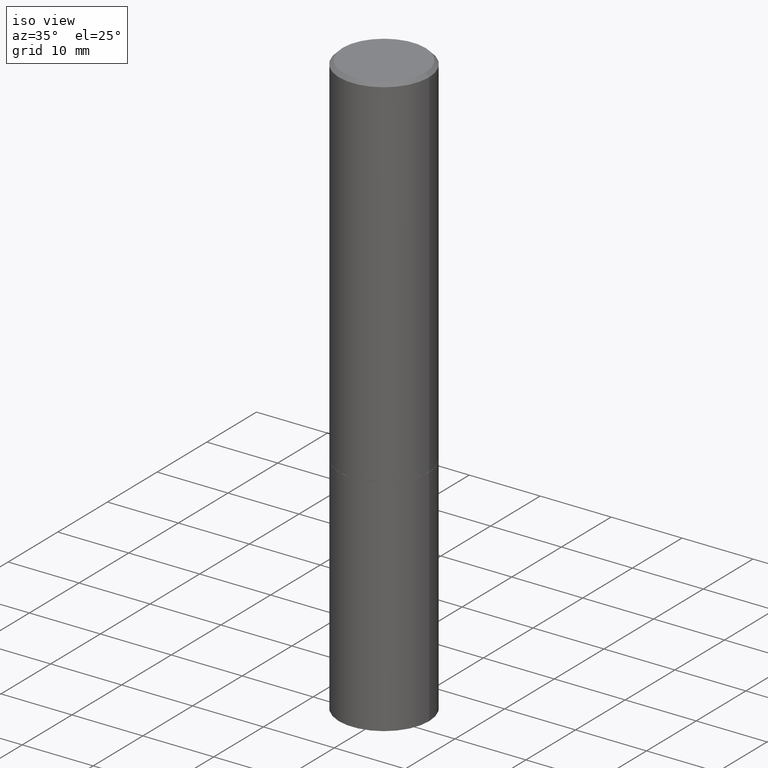
[diagram: clean part render]
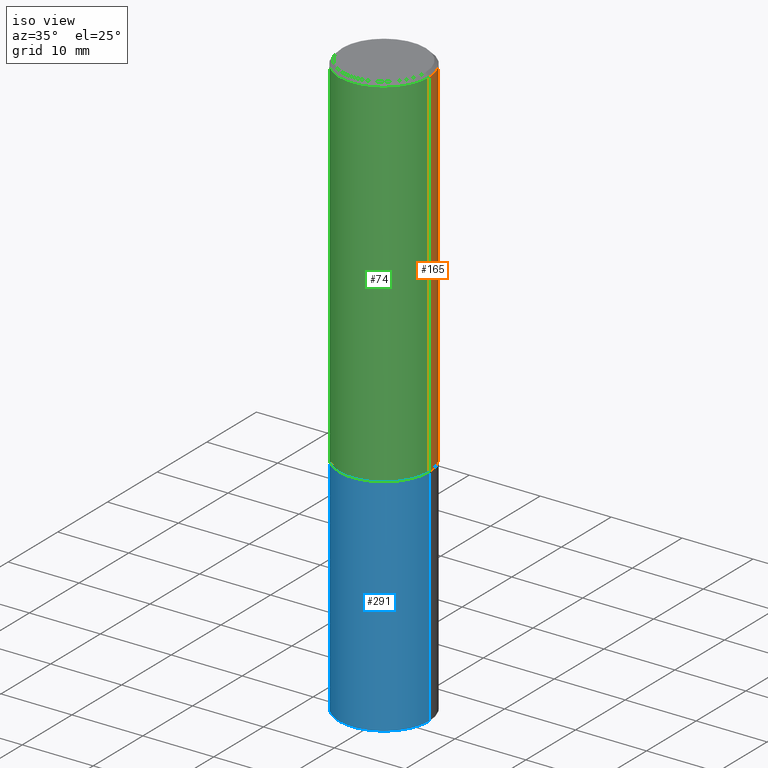
[diagram: same view with three faces highlighted in distinct colors, each labeled with its STEP entity id]
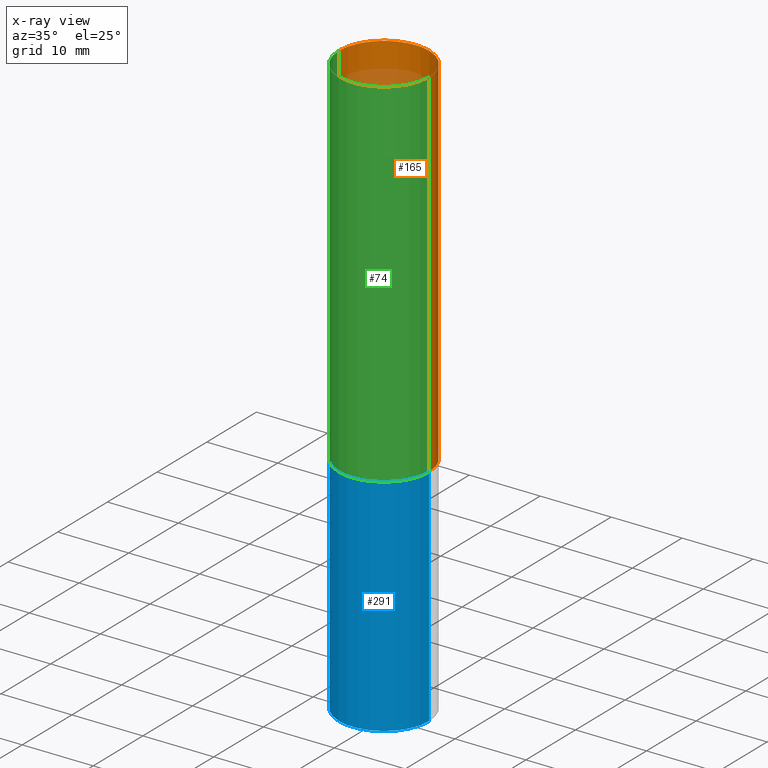
[diagram: x-ray of the same camera — body ghosted, the three highlighted faces saturated]
A machine part, iso view with three faces highlighted in distinct colors.
The next image is the same camera in x-ray (body ghosted, the three faces saturated) — at least one of them is partly hidden behind the body in this view.
Their STEP definitions:

[orange] entity #165 — the highlighted cylindrical surface (partial cylindrical patch) has radius 6.35 mm, axis along (-0, 0, 1).
#10 = CIRCLE ( 'NONE', #21, 0.2500000000000000000 ) ;
#17 = VERTEX_POINT ( 'NONE', #161 ) ;
#19 = VERTEX_POINT ( 'NONE', #282 ) ;
#21 = AXIS2_PLACEMENT_3D ( 'NONE', #54, #364, #329 ) ;
#23 = LINE ( 'NONE', #79, #342 ) ;
#49 = DIRECTION ( 'NONE',  ( -2.445468806185136877E-29, 3.491481338843145188E-15, 1.000000000000000000 ) ) ;
#54 = CARTESIAN_POINT ( 'NONE',  ( 4.888492143564087591E-29, -6.979471196347447369E-15, -1.998999999999999888 ) ) ;
#79 = CARTESIAN_POINT ( 'NONE',  ( -0.2499999999999998612, 1.776356839400249479E-15, -1.229733772563725745E-29 ) ) ;
#86 = ORIENTED_EDGE ( 'NONE', *, *, #236, .F. ) ;
#94 = CARTESIAN_POINT ( 'NONE',  ( 0.000000000000000000, 0.000000000000000000, 0.000000000000000000 ) ) ;
#101 = EDGE_CURVE ( 'NONE', #17, #302, #324, .T. ) ;
#103 = CARTESIAN_POINT ( 'NONE',  ( -0.2499999999999997502, 1.675911042644701999E-15, -0.02000000000000005940 ) ) ;
#127 = FACE_OUTER_BOUND ( 'NONE', #326, .T. ) ;
#129 = DIRECTION ( 'NONE',  ( -2.445468806185136597E-29, 3.491481338843145583E-15, 1.000000000000000000 ) ) ;
#130 = ORIENTED_EDGE ( 'NONE', *, *, #268, .T. ) ;
#144 = AXIS2_PLACEMENT_3D ( 'NONE', #351, #129, #273 ) ;
#161 = CARTESIAN_POINT ( 'NONE',  ( 0.2500000000000000000, -8.725211865769014047E-15, -1.998999999999999888 ) ) ;
#165 = ADVANCED_FACE ( 'NONE', ( #127 ), #345, .T. ) ;
#175 = DIRECTION ( 'NONE',  ( -2.445468806185136597E-29, 3.491481338843145583E-15, 1.000000000000000000 ) ) ;
#178 = ORIENTED_EDGE ( 'NONE', *, *, #225, .T. ) ;
#181 = AXIS2_PLACEMENT_3D ( 'NONE', #94, #175, #203 ) ;
#188 = CARTESIAN_POINT ( 'NONE',  ( 0.2499999999999997502, -1.784954126219744217E-15, -0.02000000000000005940 ) ) ;
#203 = DIRECTION ( 'NONE',  ( 1.000000000000000000, -6.982962677686266711E-15, 4.876176775795935793E-29 ) ) ;
#225 = EDGE_CURVE ( 'NONE', #19, #339, #23, .T. ) ;
#236 = EDGE_CURVE ( 'NONE', #302, #339, #296, .T. ) ;
#245 = DIRECTION ( 'NONE',  ( -2.445468806185136877E-29, 3.491481338843145188E-15, 1.000000000000000000 ) ) ;
#268 = EDGE_CURVE ( 'NONE', #17, #19, #10, .T. ) ;
#273 = DIRECTION ( 'NONE',  ( 1.000000000000000000, -6.982962677686267499E-15, 0.000000000000000000 ) ) ;
#282 = CARTESIAN_POINT ( 'NONE',  ( -0.2499999999999999722, -1.748293572161904475E-15, -1.998999999999999888 ) ) ;
#296 = CIRCLE ( 'NONE', #144, 0.2499999999999997502 ) ;
#302 = VERTEX_POINT ( 'NONE', #188 ) ;
#324 = LINE ( 'NONE', #334, #350 ) ;
#326 = EDGE_LOOP ( 'NONE', ( #130, #178, #86, #335 ) ) ;
#329 = DIRECTION ( 'NONE',  ( 1.000000000000000000, -6.982962677686266711E-15, 0.000000000000000000 ) ) ;
#334 = CARTESIAN_POINT ( 'NONE',  ( 0.2499999999999998612, -1.745740669421565692E-15, 1.219044193948983248E-29 ) ) ;
#335 = ORIENTED_EDGE ( 'NONE', *, *, #101, .F. ) ;
#339 = VERTEX_POINT ( 'NONE', #103 ) ;
#342 = VECTOR ( 'NONE', #245, 39.37007874015748143 ) ;
#345 = CYLINDRICAL_SURFACE ( 'NONE', #181, 0.2499999999999998612 ) ;
#350 = VECTOR ( 'NONE', #49, 39.37007874015748143 ) ;
#351 = CARTESIAN_POINT ( 'NONE',  ( 4.890937612370288047E-31, -6.982962677686311331E-17, -0.02000000000000005940 ) ) ;
#364 = DIRECTION ( 'NONE',  ( -2.445468806185136597E-29, 3.491481338843145583E-15, 1.000000000000000000 ) ) ;

[blue] entity #291 — the highlighted cylindrical surface (partial cylindrical patch) has radius 6.35 mm, axis along (-0, 0, 1).
#2 = CIRCLE ( 'NONE', #158, 0.2500000000000000000 ) ;
#6 = DIRECTION ( 'NONE',  ( -2.445468806185136877E-29, 3.491481338843145188E-15, 1.000000000000000000 ) ) ;
#11 = EDGE_CURVE ( 'NONE', #353, #135, #172, .T. ) ;
#14 = CARTESIAN_POINT ( 'NONE',  ( 7.947773620101693940E-29, -1.134731435124022443E-14, -3.250000000000000000 ) ) ;
#20 = DIRECTION ( 'NONE',  ( 1.000000000000000000, -6.982962677686266711E-15, 4.876176775795935793E-29 ) ) ;
#22 = EDGE_LOOP ( 'NONE', ( #301, #277, #243, #195 ) ) ;
#34 = CARTESIAN_POINT ( 'NONE',  ( 4.890937612370273194E-29, -6.982962677686291165E-15, -2.000000000000000000 ) ) ;
#39 = VECTOR ( 'NONE', #6, 39.37007874015748143 ) ;
#62 = EDGE_CURVE ( 'NONE', #227, #135, #162, .T. ) ;
#75 = VECTOR ( 'NONE', #295, 39.37007874015748143 ) ;
#82 = LINE ( 'NONE', #238, #75 ) ;
#84 = FACE_OUTER_BOUND ( 'NONE', #22, .T. ) ;
#97 = DIRECTION ( 'NONE',  ( -2.445468806185136597E-29, 3.491481338843145583E-15, 1.000000000000000000 ) ) ;
#111 = DIRECTION ( 'NONE',  ( -2.445468806185136597E-29, 3.491481338843145583E-15, 1.000000000000000000 ) ) ;
#115 = CARTESIAN_POINT ( 'NONE',  ( 0.2500000000000000000, -1.309305502066178953E-14, -3.250000000000000000 ) ) ;
#135 = VERTEX_POINT ( 'NONE', #234 ) ;
#136 = CYLINDRICAL_SURFACE ( 'NONE', #346, 0.2500000000000000000 ) ;
#150 = EDGE_CURVE ( 'NONE', #286, #227, #2, .T. ) ;
#153 = CARTESIAN_POINT ( 'NONE',  ( 0.000000000000000000, 0.000000000000000000, 0.000000000000000000 ) ) ;
#158 = AXIS2_PLACEMENT_3D ( 'NONE', #14, #97, #349 ) ;
#162 = LINE ( 'NONE', #167, #39 ) ;
#167 = CARTESIAN_POINT ( 'NONE',  ( 0.2500000000000000000, -1.745740669421566678E-15, 1.219044193948983948E-29 ) ) ;
#169 = DIRECTION ( 'NONE',  ( -2.445468806185136597E-29, 3.491481338843145583E-15, 1.000000000000000000 ) ) ;
#172 = CIRCLE ( 'NONE', #341, 0.2500000000000000000 ) ;
#195 = ORIENTED_EDGE ( 'NONE', *, *, #11, .F. ) ;
#212 = CARTESIAN_POINT ( 'NONE',  ( -0.2500000000000000000, -7.388781675063007725E-15, -2.000000000000000000 ) ) ;
#220 = CARTESIAN_POINT ( 'NONE',  ( -0.2500000000000000000, -7.388781675063007725E-15, -3.250000000000000000 ) ) ;
#227 = VERTEX_POINT ( 'NONE', #115 ) ;
#234 = CARTESIAN_POINT ( 'NONE',  ( 0.2500000000000000000, -8.728703347107857054E-15, -2.000000000000000000 ) ) ;
#238 = CARTESIAN_POINT ( 'NONE',  ( -0.2500000000000000000, 1.776356839400250465E-15, -1.229733772563726445E-29 ) ) ;
#243 = ORIENTED_EDGE ( 'NONE', *, *, #62, .T. ) ;
#277 = ORIENTED_EDGE ( 'NONE', *, *, #150, .T. ) ;
#286 = VERTEX_POINT ( 'NONE', #220 ) ;
#291 = ADVANCED_FACE ( 'NONE', ( #84 ), #136, .T. ) ;
#295 = DIRECTION ( 'NONE',  ( -2.445468806185136877E-29, 3.491481338843145188E-15, 1.000000000000000000 ) ) ;
#301 = ORIENTED_EDGE ( 'NONE', *, *, #338, .F. ) ;
#331 = DIRECTION ( 'NONE',  ( 1.000000000000000000, -6.982962677686266711E-15, 0.000000000000000000 ) ) ;
#338 = EDGE_CURVE ( 'NONE', #286, #353, #82, .T. ) ;
#341 = AXIS2_PLACEMENT_3D ( 'NONE', #34, #169, #331 ) ;
#346 = AXIS2_PLACEMENT_3D ( 'NONE', #153, #111, #20 ) ;
#349 = DIRECTION ( 'NONE',  ( 1.000000000000000000, -6.982962677686262766E-15, 0.000000000000000000 ) ) ;
#353 = VERTEX_POINT ( 'NONE', #212 ) ;

[green] entity #74 — the highlighted cylindrical surface (partial cylindrical patch) has radius 6.35 mm, axis along (-0, 0, 1).
#7 = FACE_OUTER_BOUND ( 'NONE', #71, .T. ) ;
#13 = DIRECTION ( 'NONE',  ( 1.000000000000000000, -6.982962677686267499E-15, 0.000000000000000000 ) ) ;
#17 = VERTEX_POINT ( 'NONE', #161 ) ;
#19 = VERTEX_POINT ( 'NONE', #282 ) ;
#23 = LINE ( 'NONE', #79, #342 ) ;
#35 = AXIS2_PLACEMENT_3D ( 'NONE', #58, #48, #361 ) ;
#48 = DIRECTION ( 'NONE',  ( -2.445468806185136597E-29, 3.491481338843145583E-15, 1.000000000000000000 ) ) ;
#49 = DIRECTION ( 'NONE',  ( -2.445468806185136877E-29, 3.491481338843145188E-15, 1.000000000000000000 ) ) ;
#52 = DIRECTION ( 'NONE',  ( -2.445468806185136597E-29, 3.491481338843145583E-15, 1.000000000000000000 ) ) ;
#58 = CARTESIAN_POINT ( 'NONE',  ( 4.888492143564087591E-29, -6.979471196347447369E-15, -1.998999999999999888 ) ) ;
#71 = EDGE_LOOP ( 'NONE', ( #249, #184, #314, #304 ) ) ;
#74 = ADVANCED_FACE ( 'NONE', ( #7 ), #228, .T. ) ;
#79 = CARTESIAN_POINT ( 'NONE',  ( -0.2499999999999998612, 1.776356839400249479E-15, -1.229733772563725745E-29 ) ) ;
#101 = EDGE_CURVE ( 'NONE', #17, #302, #324, .T. ) ;
#103 = CARTESIAN_POINT ( 'NONE',  ( -0.2499999999999997502, 1.675911042644701999E-15, -0.02000000000000005940 ) ) ;
#116 = DIRECTION ( 'NONE',  ( 1.000000000000000000, -6.982962677686266711E-15, 4.876176775795935793E-29 ) ) ;
#128 = AXIS2_PLACEMENT_3D ( 'NONE', #263, #52, #116 ) ;
#140 = EDGE_CURVE ( 'NONE', #339, #302, #154, .T. ) ;
#154 = CIRCLE ( 'NONE', #265, 0.2499999999999997502 ) ;
#161 = CARTESIAN_POINT ( 'NONE',  ( 0.2500000000000000000, -8.725211865769014047E-15, -1.998999999999999888 ) ) ;
#166 = CIRCLE ( 'NONE', #35, 0.2500000000000000000 ) ;
#184 = ORIENTED_EDGE ( 'NONE', *, *, #284, .T. ) ;
#188 = CARTESIAN_POINT ( 'NONE',  ( 0.2499999999999997502, -1.784954126219744217E-15, -0.02000000000000005940 ) ) ;
#225 = EDGE_CURVE ( 'NONE', #19, #339, #23, .T. ) ;
#228 = CYLINDRICAL_SURFACE ( 'NONE', #128, 0.2499999999999998612 ) ;
#245 = DIRECTION ( 'NONE',  ( -2.445468806185136877E-29, 3.491481338843145188E-15, 1.000000000000000000 ) ) ;
#249 = ORIENTED_EDGE ( 'NONE', *, *, #225, .F. ) ;
#263 = CARTESIAN_POINT ( 'NONE',  ( 0.000000000000000000, 0.000000000000000000, 0.000000000000000000 ) ) ;
#265 = AXIS2_PLACEMENT_3D ( 'NONE', #267, #270, #13 ) ;
#267 = CARTESIAN_POINT ( 'NONE',  ( 4.890937612370288047E-31, -6.982962677686311331E-17, -0.02000000000000005940 ) ) ;
#270 = DIRECTION ( 'NONE',  ( -2.445468806185136597E-29, 3.491481338843145583E-15, 1.000000000000000000 ) ) ;
#282 = CARTESIAN_POINT ( 'NONE',  ( -0.2499999999999999722, -1.748293572161904475E-15, -1.998999999999999888 ) ) ;
#284 = EDGE_CURVE ( 'NONE', #19, #17, #166, .T. ) ;
#302 = VERTEX_POINT ( 'NONE', #188 ) ;
#304 = ORIENTED_EDGE ( 'NONE', *, *, #140, .F. ) ;
#314 = ORIENTED_EDGE ( 'NONE', *, *, #101, .T. ) ;
#324 = LINE ( 'NONE', #334, #350 ) ;
#334 = CARTESIAN_POINT ( 'NONE',  ( 0.2499999999999998612, -1.745740669421565692E-15, 1.219044193948983248E-29 ) ) ;
#339 = VERTEX_POINT ( 'NONE', #103 ) ;
#342 = VECTOR ( 'NONE', #245, 39.37007874015748143 ) ;
#350 = VECTOR ( 'NONE', #49, 39.37007874015748143 ) ;
#361 = DIRECTION ( 'NONE',  ( 1.000000000000000000, -6.982962677686266711E-15, 0.000000000000000000 ) ) ;